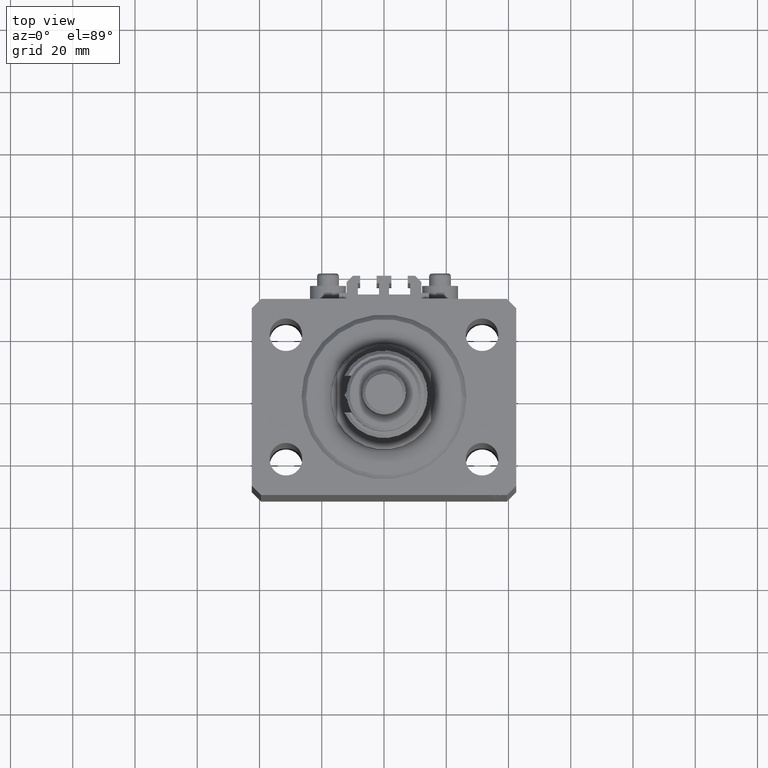
[diagram: clean part render]
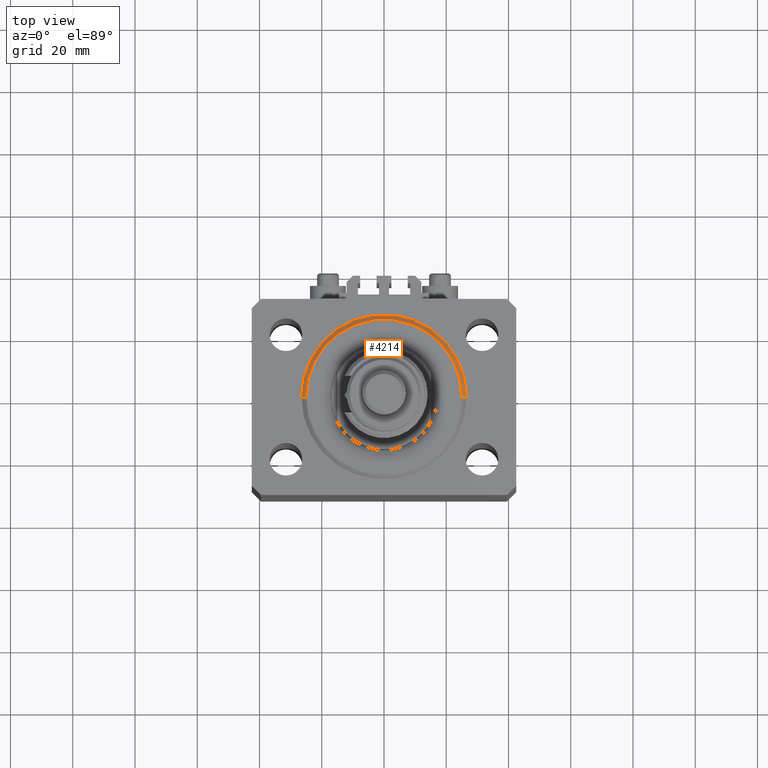
[diagram: same view with one face highlighted and labeled with its STEP entity id]
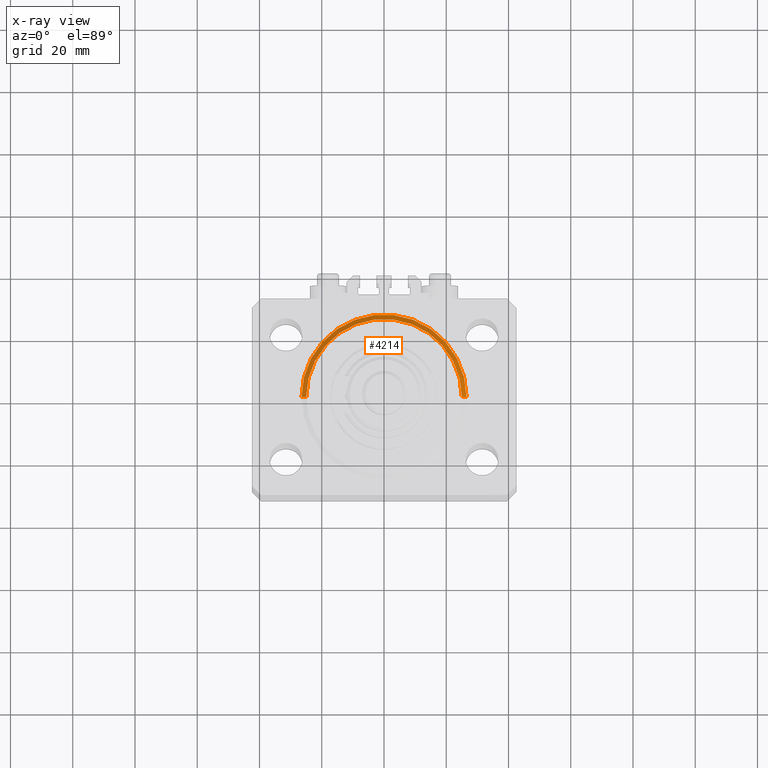
[diagram: x-ray of the same camera — body ghosted, the highlighted face saturated]
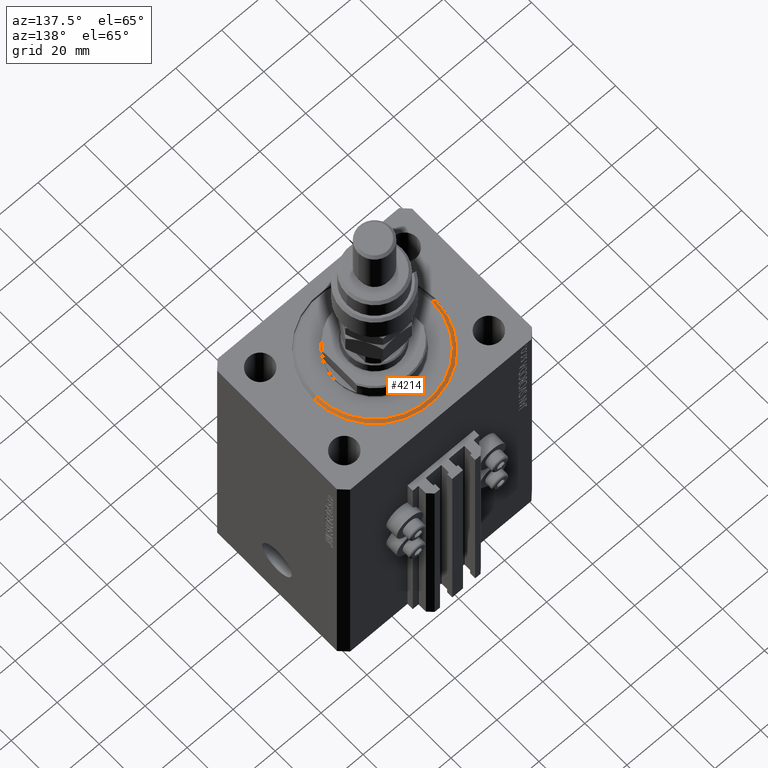
[diagram: same view with one face highlighted and labeled with its STEP entity id]
A machine part, top view. The second image highlights one B-rep face of the part: STEP entity #4214.
The next image is the same camera in x-ray: the body ghosted, the highlighted face saturated — about 0% of this face is hidden behind the body in this view.
A second angle (auxiliary view) of the same face is appended — the face is thin or edge-on in the first view.
In plain terms, the highlighted conical surface has half-angle 45 deg.
Its self-contained STEP definition (entity closure, byte-faithful):
#1711 = ORIENTED_EDGE ( 'NONE', *, *, #31198, .T. ) ;
#2089 = DIRECTION ( 'NONE',  ( 1.000000000000000000, 0.000000000000000000, 0.000000000000000000 ) ) ;
#2905 = VECTOR ( 'NONE', #49796, 1000.000000000000000 ) ;
#4033 = AXIS2_PLACEMENT_3D ( 'NONE', #6142, #13008, #2089 ) ;
#4214 = ADVANCED_FACE ( 'NONE', ( #37341 ), #20218, .T. ) ;
#6142 = CARTESIAN_POINT ( 'NONE',  ( 0.000000000000000000, 0.000000000000000000, 1.500000000000046407 ) ) ;
#7049 = CIRCLE ( 'NONE', #30548, 24.99999999999995026 ) ;
#7446 = LINE ( 'NONE', #22928, #2905 ) ;
#9324 = DIRECTION ( 'NONE',  ( -0.000000000000000000, -0.000000000000000000, -1.000000000000000000 ) ) ;
#10669 = CARTESIAN_POINT ( 'NONE',  ( -26.50000000000000355, 0.000000000000000000, 1.500000000000046407 ) ) ;
#10745 = CARTESIAN_POINT ( 'NONE',  ( 26.50000000000000355, 3.245314017740485765E-15, 1.500000000000046407 ) ) ;
#13008 = DIRECTION ( 'NONE',  ( -0.000000000000000000, -0.000000000000000000, 1.000000000000000000 ) ) ;
#13039 = VERTEX_POINT ( 'NONE', #10745 ) ;
#13712 = EDGE_LOOP ( 'NONE', ( #32857, #1711, #14069, #27063 ) ) ;
#14069 = ORIENTED_EDGE ( 'NONE', *, *, #25665, .F. ) ;
#14342 = DIRECTION ( 'NONE',  ( -0.000000000000000000, -0.000000000000000000, 1.000000000000000000 ) ) ;
#15949 = VERTEX_POINT ( 'NONE', #18966 ) ;
#17200 = DIRECTION ( 'NONE',  ( 1.000000000000000000, 0.000000000000000000, 0.000000000000000000 ) ) ;
#17235 = VERTEX_POINT ( 'NONE', #45772 ) ;
#18966 = CARTESIAN_POINT ( 'NONE',  ( -24.99999999999995026, 3.153465507804431248E-15, 0.000000000000000000 ) ) ;
#20218 = CONICAL_SURFACE ( 'NONE', #4033, 26.50000000000000355, 0.7853981633974506105 ) ;
#21000 = CARTESIAN_POINT ( 'NONE',  ( 0.000000000000000000, 0.000000000000000000, 0.000000000000000000 ) ) ;
#21553 = VECTOR ( 'NONE', #35626, 1000.000000000000000 ) ;
#22928 = CARTESIAN_POINT ( 'NONE',  ( -26.50000000000000355, 3.245314017740486554E-15, 1.500000000000046407 ) ) ;
#23232 = LINE ( 'NONE', #38690, #21553 ) ;
#23551 = EDGE_CURVE ( 'NONE', #15949, #17235, #7049, .T. ) ;
#25665 = EDGE_CURVE ( 'NONE', #13039, #25996, #46823, .T. ) ;
#25996 = VERTEX_POINT ( 'NONE', #10669 ) ;
#27063 = ORIENTED_EDGE ( 'NONE', *, *, #32379, .F. ) ;
#29550 = CARTESIAN_POINT ( 'NONE',  ( 0.000000000000000000, 0.000000000000000000, 1.500000000000046407 ) ) ;
#30548 = AXIS2_PLACEMENT_3D ( 'NONE', #21000, #9324, #17200 ) ;
#31198 = EDGE_CURVE ( 'NONE', #15949, #25996, #7446, .T. ) ;
#32379 = EDGE_CURVE ( 'NONE', #17235, #13039, #23232, .T. ) ;
#32857 = ORIENTED_EDGE ( 'NONE', *, *, #23551, .F. ) ;
#33875 = AXIS2_PLACEMENT_3D ( 'NONE', #29550, #14342, #41489 ) ;
#35626 = DIRECTION ( 'NONE',  ( 0.7071067811865491270, 0.000000000000000000, 0.7071067811865459074 ) ) ;
#37341 = FACE_OUTER_BOUND ( 'NONE', #13712, .T. ) ;
#38690 = CARTESIAN_POINT ( 'NONE',  ( 26.50000000000000355, 0.000000000000000000, 1.500000000000046407 ) ) ;
#41489 = DIRECTION ( 'NONE',  ( 1.000000000000000000, 0.000000000000000000, 0.000000000000000000 ) ) ;
#45772 = CARTESIAN_POINT ( 'NONE',  ( 24.99999999999995026, 0.000000000000000000, 0.000000000000000000 ) ) ;
#46823 = CIRCLE ( 'NONE', #33875, 26.50000000000000355 ) ;
#49796 = DIRECTION ( 'NONE',  ( -0.7071067811865491270, 8.659560562354952580E-17, 0.7071067811865459074 ) ) ;